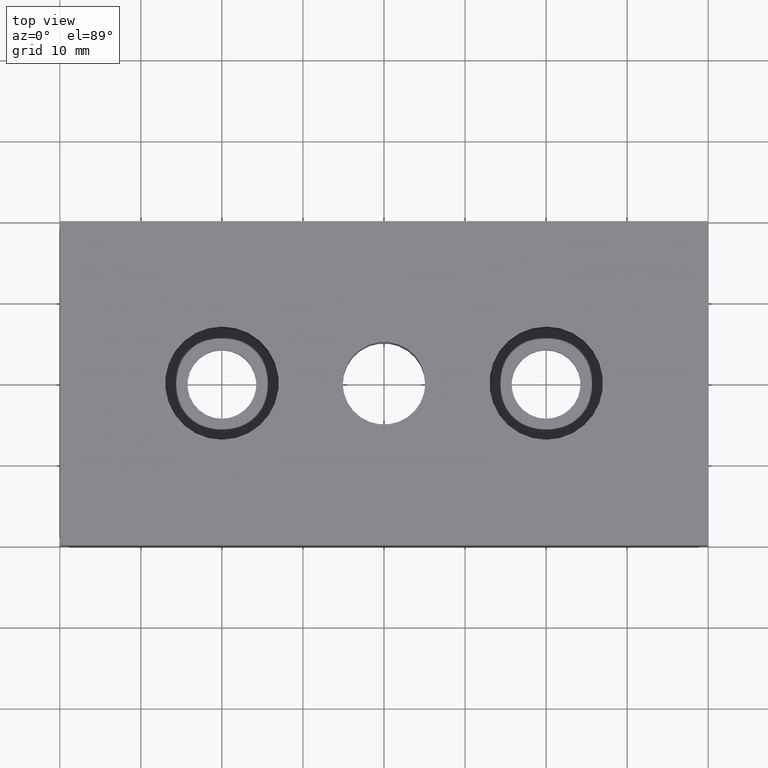
[diagram: clean part render]
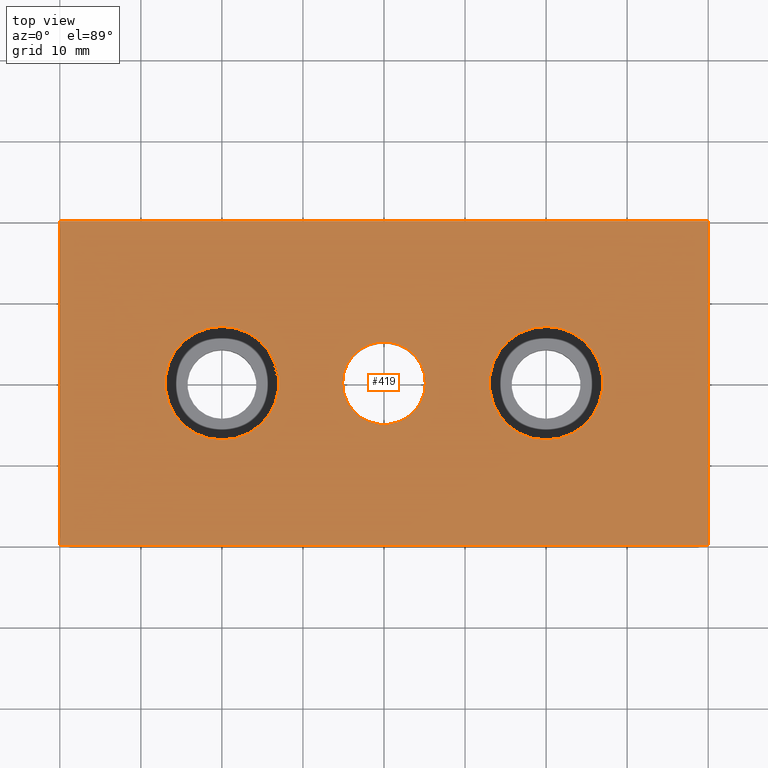
[diagram: same view with one face highlighted and labeled with its STEP entity id]
A machine part, top view. The second image highlights one B-rep face of the part: STEP entity #419.
In plain terms, the highlighted planar face has unit normal (0, 0, -1).
Its self-contained STEP definition (entity closure, byte-faithful):
#18=CARTESIAN_POINT('',(-45.099999999999994,-8.881784E-015,12.0));
#19=VERTEX_POINT('',#18);
#26=CARTESIAN_POINT('',(-34.899999999999999,-8.881784E-015,12.0));
#27=VERTEX_POINT('',#26);
#28=CARTESIAN_POINT('',(-40.0,-8.881784E-015,12.0));
#29=DIRECTION('',(0.0,0.0,1.0));
#30=DIRECTION('',(-1.0,0.0,0.0));
#31=AXIS2_PLACEMENT_3D('',#28,#29,#30);
#32=CIRCLE('',#31,5.100000000000001);
#33=EDGE_CURVE('',#19,#27,#32,.T.);
#91=CARTESIAN_POINT('',(-59.999999999999993,6.999999999999991,12.0));
#92=VERTEX_POINT('',#91);
#93=CARTESIAN_POINT('',(-59.999999999999993,-7.000000000000007,12.0));
#94=VERTEX_POINT('',#93);
#95=CARTESIAN_POINT('',(-59.999999999999993,-8.881784E-015,12.0));
#96=DIRECTION('',(0.0,0.0,-1.0));
#97=DIRECTION('',(0.0,-1.0,0.0));
#98=AXIS2_PLACEMENT_3D('',#95,#96,#97);
#99=CIRCLE('',#98,6.999999999999997);
#100=EDGE_CURVE('',#92,#94,#99,.T.);
#175=CARTESIAN_POINT('',(-19.999999999999996,6.999999999999991,12.0));
#176=VERTEX_POINT('',#175);
#177=CARTESIAN_POINT('',(-19.999999999999996,-7.000000000000007,12.0));
#178=VERTEX_POINT('',#177);
#179=CARTESIAN_POINT('',(-19.999999999999996,-8.881784E-015,12.0));
#180=DIRECTION('',(0.0,0.0,-1.0));
#181=DIRECTION('',(0.0,-1.0,0.0));
#182=AXIS2_PLACEMENT_3D('',#179,#180,#181);
#183=CIRCLE('',#182,6.999999999999997);
#184=EDGE_CURVE('',#176,#178,#183,.T.);
#217=CARTESIAN_POINT('',(-80.0,20.000000000000007,12.0));
#218=VERTEX_POINT('',#217);
#219=CARTESIAN_POINT('',(-80.0,-20.000000000000007,12.0));
#220=VERTEX_POINT('',#219);
#221=CARTESIAN_POINT('',(-80.0,20.000000000000007,12.0));
#222=DIRECTION('',(0.0,-1.0,0.0));
#223=VECTOR('',#222,40.000000000000014);
#224=LINE('',#221,#223);
#225=EDGE_CURVE('',#218,#220,#224,.T.);
#257=CARTESIAN_POINT('',(7.105427E-015,-20.000000000000004,12.0));
#258=VERTEX_POINT('',#257);
#259=CARTESIAN_POINT('',(-80.0,-20.000000000000007,12.0));
#260=DIRECTION('',(1.0,0.0,0.0));
#261=VECTOR('',#260,80.0);
#262=LINE('',#259,#261);
#263=EDGE_CURVE('',#220,#258,#262,.T.);
#288=CARTESIAN_POINT('',(0.0,20.000000000000007,12.0));
#289=VERTEX_POINT('',#288);
#290=CARTESIAN_POINT('',(0.0,-20.000000000000004,12.0));
#291=DIRECTION('',(0.0,1.0,0.0));
#292=VECTOR('',#291,40.000000000000007);
#293=LINE('',#290,#292);
#294=EDGE_CURVE('',#258,#289,#293,.T.);
#319=CARTESIAN_POINT('',(0.0,20.000000000000007,12.0));
#320=DIRECTION('',(-1.0,0.0,0.0));
#321=VECTOR('',#320,80.0);
#322=LINE('',#319,#321);
#323=EDGE_CURVE('',#289,#218,#322,.T.);
#378=CARTESIAN_POINT('',(4.000000000000004,-22.000000000000007,12.0));
#379=DIRECTION('',(0.0,0.0,-1.0));
#380=DIRECTION('',(-1.0,0.0,0.0));
#381=AXIS2_PLACEMENT_3D('',#378,#379,#380);
#382=PLANE('',#381);
#383=ORIENTED_EDGE('',*,*,#225,.T.);
#384=ORIENTED_EDGE('',*,*,#263,.T.);
#385=ORIENTED_EDGE('',*,*,#294,.T.);
#386=ORIENTED_EDGE('',*,*,#323,.T.);
#387=EDGE_LOOP('',(#383,#384,#385,#386));
#388=FACE_OUTER_BOUND('',#387,.T.);
#389=CARTESIAN_POINT('',(-59.999999999999993,-8.881784E-015,12.0));
#390=DIRECTION('',(0.0,0.0,-1.0));
#391=DIRECTION('',(0.0,-1.0,0.0));
#392=AXIS2_PLACEMENT_3D('',#389,#390,#391);
#393=CIRCLE('',#392,6.999999999999997);
#394=EDGE_CURVE('',#94,#92,#393,.T.);
#395=ORIENTED_EDGE('',*,*,#394,.T.);
#396=ORIENTED_EDGE('',*,*,#100,.T.);
#397=EDGE_LOOP('',(#395,#396));
#398=FACE_BOUND('',#397,.T.);
#399=CARTESIAN_POINT('',(-19.999999999999996,-8.881784E-015,12.0));
#400=DIRECTION('',(0.0,0.0,-1.0));
#401=DIRECTION('',(0.0,-1.0,0.0));
#402=AXIS2_PLACEMENT_3D('',#399,#400,#401);
#403=CIRCLE('',#402,6.999999999999997);
#404=EDGE_CURVE('',#178,#176,#403,.T.);
#405=ORIENTED_EDGE('',*,*,#404,.T.);
#406=ORIENTED_EDGE('',*,*,#184,.T.);
#407=EDGE_LOOP('',(#405,#406));
#408=FACE_BOUND('',#407,.T.);
#409=CARTESIAN_POINT('',(-40.0,-8.881784E-015,12.0));
#410=DIRECTION('',(0.0,0.0,1.0));
#411=DIRECTION('',(-1.0,0.0,0.0));
#412=AXIS2_PLACEMENT_3D('',#409,#410,#411);
#413=CIRCLE('',#412,5.100000000000001);
#414=EDGE_CURVE('',#27,#19,#413,.T.);
#415=ORIENTED_EDGE('',*,*,#414,.F.);
#416=ORIENTED_EDGE('',*,*,#33,.F.);
#417=EDGE_LOOP('',(#415,#416));
#418=FACE_BOUND('',#417,.T.);
#419=ADVANCED_FACE('',(#388,#398,#408,#418),#382,.F.);